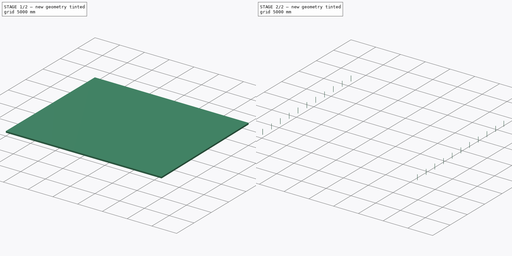
[diagram: build sequence overview — one tinted view per stage of 2, left to right]
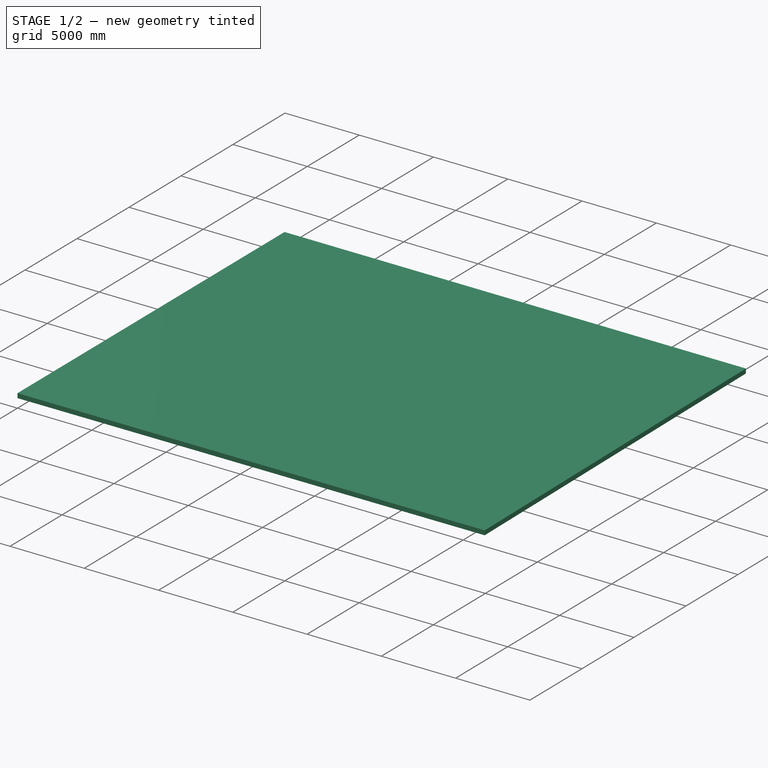
[diagram: stage 1 of 2 — iso view after this stage's code; geometry added in this stage tinted green]
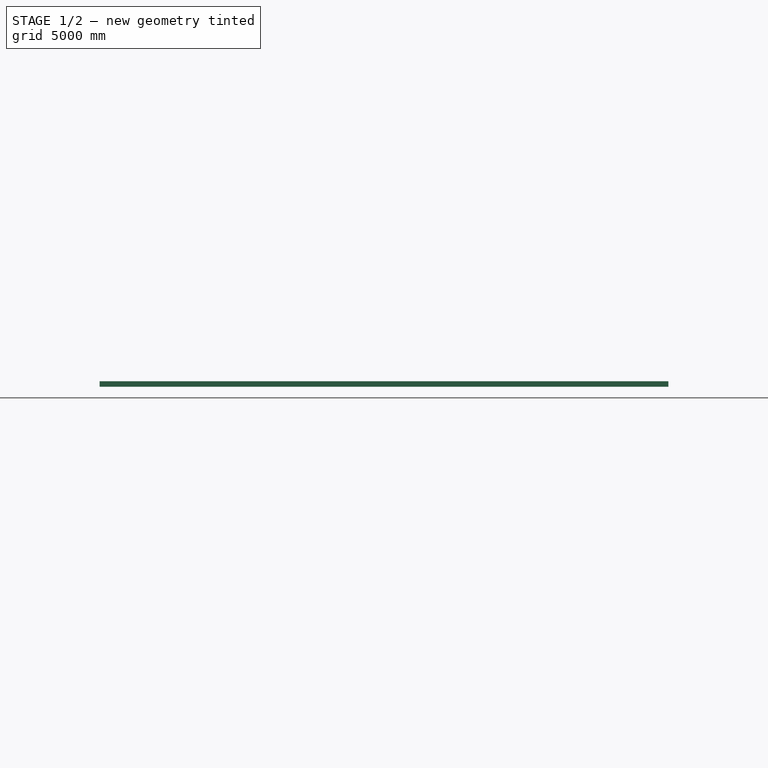
[diagram: stage 1 of 2 — front view after this stage's code; geometry added in this stage tinted green]
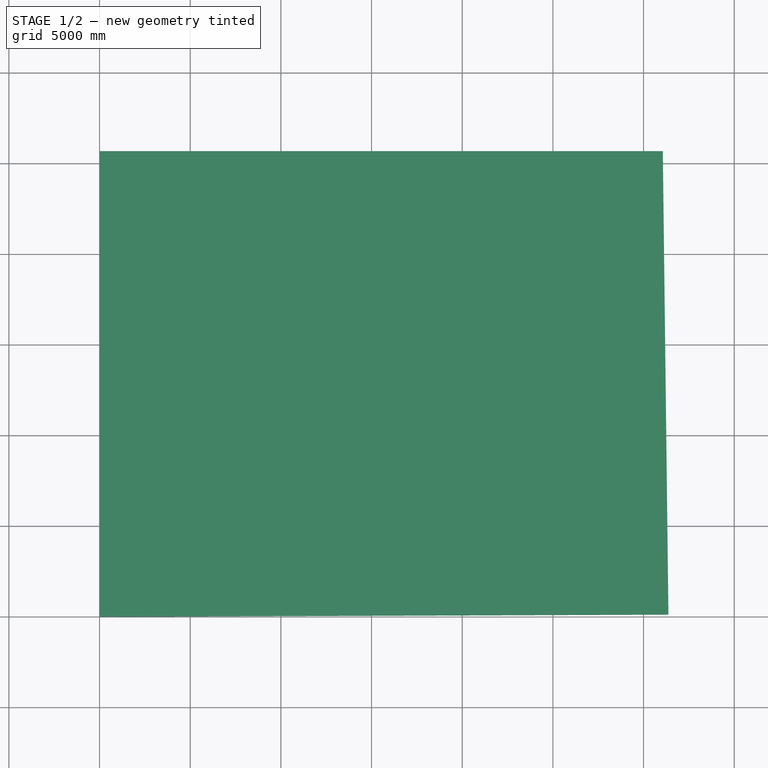
[diagram: stage 1 of 2 — top view after this stage's code; geometry added in this stage tinted green]
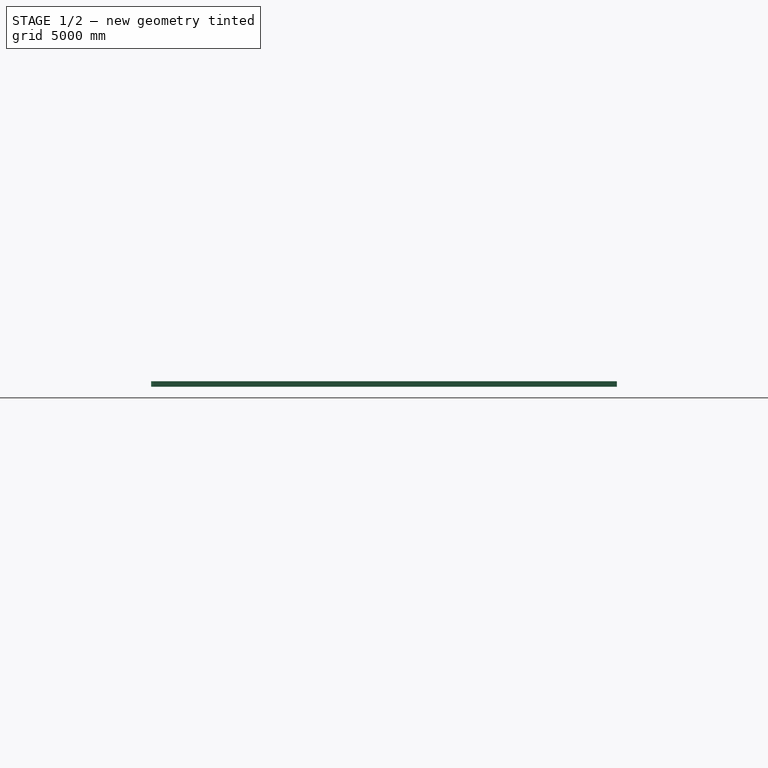
[diagram: stage 1 of 2 — right view after this stage's code; geometry added in this stage tinted green]
FCSTD DOCUMENT  (FreeCAD 1.0R39109 (Git))
Label: участок - забор
License: All rights reserved
LicenseURL: https://en.wikipedia.org/wiki/All_rights_reserved
objects: Sketcher::SketchObject×2, Part::Extrusion×2
note: 6 computed .brp shape members not serialized (recipe doc carries the construction recipe); baked Part::Feature solids carry a one-line shape summary decoded from their .brp

FEATURE [Sketcher::SketchObject] Sketch
  ArcFitTolerance = 1e-06
  FullyConstrained = true
  MakeInternals = false
  sketch-geometry (4):
    g0: LineSegment StartX=0 StartY=0 StartZ=0 EndX=0 EndY=25680 EndZ=0
    g1: LineSegment StartX=0 StartY=25680 StartZ=0 EndX=31060 EndY=25680 EndZ=0
    g2: LineSegment StartX=31060 StartY=25680 StartZ=0 EndX=31370 EndY=120 EndZ=0
    g3: LineSegment StartX=31370 StartY=120 StartZ=0 EndX=0 EndY=0 EndZ=0
  constraints (11):
    c: Coincident(g-1,g0)
    c: Vertical(g0)
    c: Coincident(g0,g1)
    c: Horizontal(g1)
    c: Coincident(g1,g2)
    c: Coincident(g2,g3)
    c: Coincident(g3,g0)
    c: DistanceY(g0,g0) = 25680  'west'
    c: DistanceX(g1,g1) = 31060
    c: DistanceY(g2,g2) = 25560
    c: DistanceX(g3,g3) = 31370
FEATURE [Part::Extrusion] Extrude  label="участок"
  Base = -> Sketch
  Dir = (0,0,1)
  DirMode = 2
  FaceMakerClass = Part::FaceMakerBullseye
  FaceMakerMode = 3
  LengthFwd = 300
  LengthRev = 0
  Solid = true
  Symmetric = false
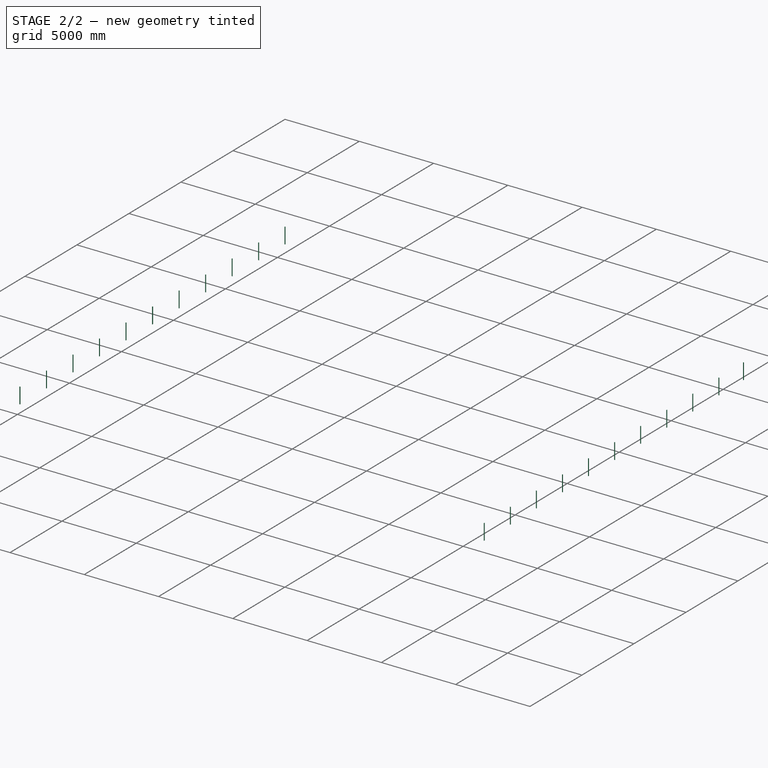
[diagram: stage 2 of 2 — iso view after this stage's code; geometry added in this stage tinted green]
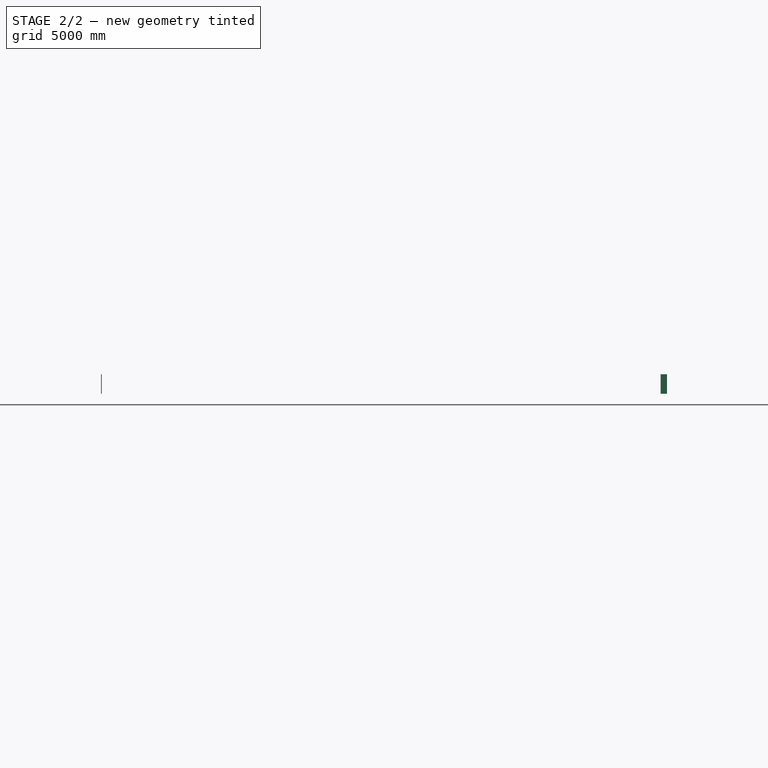
[diagram: stage 2 of 2 — front view after this stage's code; geometry added in this stage tinted green]
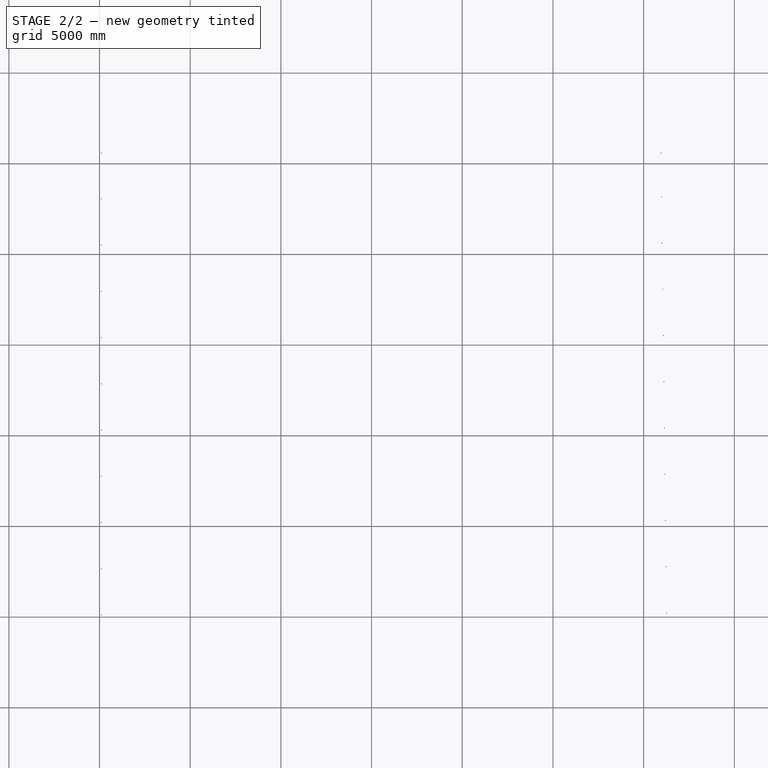
[diagram: stage 2 of 2 — top view after this stage's code; geometry added in this stage tinted green]
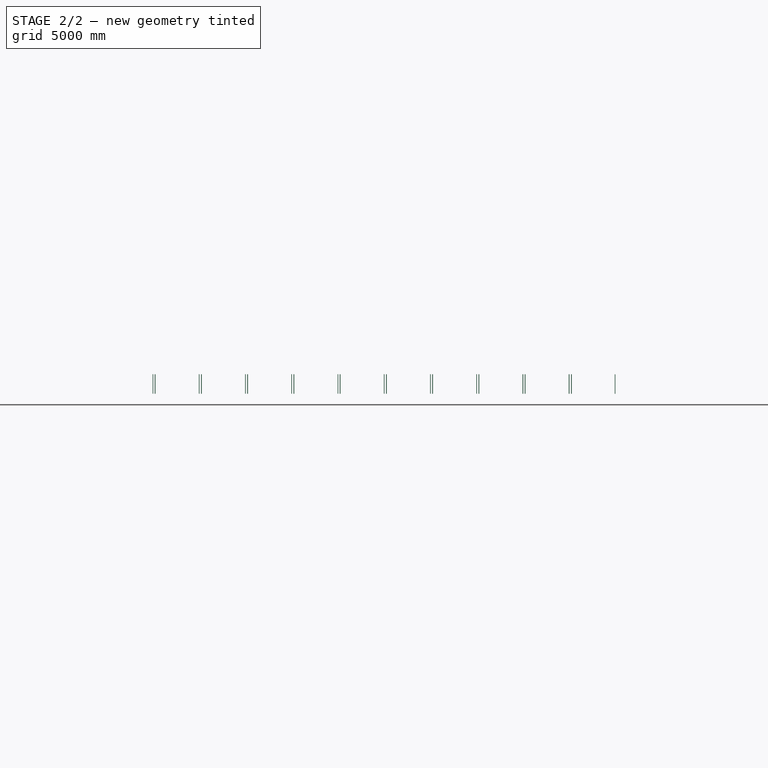
[diagram: stage 2 of 2 — right view after this stage's code; geometry added in this stage tinted green]
FEATURE [Sketcher::SketchObject] Sketch001
  ArcFitTolerance = 1e-06
  ExternalGeometry = -> [Extrude]
  FullyConstrained = true
  MakeInternals = false
  Placement = pos=(15595.5,12848.7,300) rot=(0,0,1;0rad)
  sketch-geometry (114):
    g0: LineSegment [constr] StartX=-15495.5 StartY=12731.3 StartZ=0 EndX=-15495.5 EndY=-12748.7 EndZ=0
    g1: LineSegment [constr] StartX=-15495.5 StartY=-12748.7 StartZ=0 EndX=15674.5 EndY=-12628.7 EndZ=0
    g2: LineSegment [constr] StartX=15674.5 StartY=-12628.7 StartZ=0 EndX=15364.5 EndY=12731.3 EndZ=0
    g3: LineSegment [constr] StartX=15364.5 StartY=12731.3 StartZ=0 EndX=-15495.5 EndY=12731.3 EndZ=0
    g4: LineSegment StartX=-15515.5 StartY=-12728.7 StartZ=0 EndX=-15475.5 EndY=-12728.7 EndZ=0
    g5: LineSegment StartX=-15475.5 StartY=-12728.7 StartZ=0 EndX=-15475.5 EndY=-12768.7 EndZ=0
    g6: LineSegment StartX=-15475.5 StartY=-12768.7 StartZ=0 EndX=-15515.5 EndY=-12768.7 EndZ=0
    g7: LineSegment StartX=-15515.5 StartY=-12768.7 StartZ=0 EndX=-15515.5 EndY=-12728.7 EndZ=0
    g8: GeomPoint [constr] X=-15495.5 Y=-12748.7 Z=0
    g9: LineSegment StartX=15654.5 StartY=-12648.7 StartZ=0 EndX=15694.5 EndY=-12648.7 EndZ=0
    g10: LineSegment StartX=15694.5 StartY=-12648.7 StartZ=0 EndX=15694.5 EndY=-12608.7 EndZ=0
    g11: LineSegment StartX=15694.5 StartY=-12608.7 StartZ=0 EndX=15654.5 EndY=-12608.7 EndZ=0
    g12: LineSegment StartX=15654.5 StartY=-12608.7 StartZ=0 EndX=15654.5 EndY=-12648.7 EndZ=0
    g13: GeomPoint [constr] X=15674.5 Y=-12628.7 Z=0
    g14: LineSegment StartX=15344.5 StartY=12711.3 StartZ=0 EndX=15384.5 EndY=12711.3 EndZ=0
    g15: LineSegment StartX=15384.5 StartY=12711.3 StartZ=0 EndX=15384.5 EndY=12751.3 EndZ=0
    g16: LineSegment StartX=15384.5 StartY=12751.3 StartZ=0 EndX=15344.5 EndY=12751.3 EndZ=0
    g17: LineSegment StartX=15344.5 StartY=12751.3 StartZ=0 EndX=15344.5 EndY=12711.3 EndZ=0
    g18: GeomPoint [constr] X=15364.5 Y=12731.3 Z=0
    g19: LineSegment StartX=-15515.5 StartY=12711.3 StartZ=0 EndX=-15475.5 EndY=12711.3 EndZ=0
    g20: LineSegment StartX=-15475.5 StartY=12711.3 StartZ=0 EndX=-15475.5 EndY=12751.3 EndZ=0
    g21: LineSegment StartX=-15475.5 StartY=12751.3 StartZ=0 EndX=-15515.5 EndY=12751.3 EndZ=0
    g22: LineSegment StartX=-15515.5 StartY=12751.3 StartZ=0 EndX=-15515.5 EndY=12711.3 EndZ=0
    g23: GeomPoint [constr] X=-15495.5 Y=12731.3 Z=0
    g24: LineSegment StartX=-15515.5 StartY=-10178.7 StartZ=0 EndX=-15475.5 EndY=-10178.7 EndZ=0
    g25: LineSegment StartX=-15475.5 StartY=-10178.7 StartZ=0 EndX=-15475.5 EndY=-10218.7 EndZ=0
    g26: LineSegment StartX=-15475.5 StartY=-10218.7 StartZ=0 EndX=-15515.5 EndY=-10218.7 EndZ=0
    g27: LineSegment StartX=-15515.5 StartY=-10218.7 StartZ=0 EndX=-15515.5 EndY=-10178.7 EndZ=0
    g28: GeomPoint [constr] X=-15495.5 Y=-10198.7 Z=0
    g29: LineSegment StartX=-15515.5 StartY=-7668.72 StartZ=0 EndX=-15475.5 EndY=-7668.72 EndZ=0
    g30: LineSegment StartX=-15475.5 StartY=-7668.72 StartZ=0 EndX=-15475.5 EndY=-7628.72 EndZ=0
    g31: LineSegment StartX=-15475.5 StartY=-7628.72 StartZ=0 EndX=-15515.5 EndY=-7628.72 EndZ=0
    g32: LineSegment StartX=-15515.5 StartY=-7628.72 StartZ=0 EndX=-15515.5 EndY=-7668.72 EndZ=0
    g33: GeomPoint [constr] X=-15495.5 Y=-7648.72 Z=0
    g34: LineSegment StartX=-15515.5 StartY=-5118.72 StartZ=0 EndX=-15475.5 EndY=-5118.72 EndZ=0
    g35: LineSegment StartX=-15475.5 StartY=-5118.72 StartZ=0 EndX=-15475.5 EndY=-5078.72 EndZ=0
    g36: LineSegment StartX=-15475.5 StartY=-5078.72 StartZ=0 EndX=-15515.5 EndY=-5078.72 EndZ=0
    g37: LineSegment StartX=-15515.5 StartY=-5078.72 StartZ=0 EndX=-15515.5 EndY=-5118.72 EndZ=0
    g38: GeomPoint [constr] X=-15495.5 Y=-5098.72 Z=0
    g39: LineSegment StartX=-15515.5 StartY=-2568.72 StartZ=0 EndX=-15475.5 EndY=-2568.72 EndZ=0
    g40: LineSegment StartX=-15475.5 StartY=-2568.72 StartZ=0 EndX=-15475.5 EndY=-2528.72 EndZ=0
    g41: LineSegment StartX=-15475.5 StartY=-2528.72 StartZ=0 EndX=-15515.5 EndY=-2528.72 EndZ=0
    g42: LineSegment StartX=-15515.5 StartY=-2528.72 StartZ=0 EndX=-15515.5 EndY=-2568.72 EndZ=0
    g43: GeomPoint [constr] X=-15495.5 Y=-2548.72 Z=0
    g44: LineSegment StartX=-15515.5 StartY=-18.7243 StartZ=0 EndX=-15475.5 EndY=-18.7243 EndZ=0
    g45: LineSegment StartX=-15475.5 StartY=-18.7243 StartZ=0 EndX=-15475.5 EndY=21.2757 EndZ=0
    g46: LineSegment StartX=-15475.5 StartY=21.2757 StartZ=0 EndX=-15515.5 EndY=21.2757 EndZ=0
    g47: LineSegment StartX=-15515.5 StartY=21.2757 StartZ=0 EndX=-15515.5 EndY=-18.7243 EndZ=0
    g48: GeomPoint [constr] X=-15495.5 Y=1.27566 Z=0
    g49: LineSegment StartX=-15515.5 StartY=2531.28 StartZ=0 EndX=-15475.5 EndY=2531.28 EndZ=0
    g50: LineSegment StartX=-15475.5 StartY=2531.28 StartZ=0 EndX=-15475.5 EndY=2571.28 EndZ=0
    g51: LineSegment StartX=-15475.5 StartY=2571.28 StartZ=0 EndX=-15515.5 EndY=2571.28 EndZ=0
    g52: LineSegment StartX=-15515.5 StartY=2571.28 StartZ=0 EndX=-15515.5 EndY=2531.28 EndZ=0
    g53: GeomPoint [constr] X=-15495.5 Y=2551.28 Z=0
    g54: LineSegment StartX=-15515.5 StartY=5081.28 StartZ=0 EndX=-15475.5 EndY=5081.28 EndZ=0
    g55: LineSegment StartX=-15475.5 StartY=5081.28 StartZ=0 EndX=-15475.5 EndY=5121.28 EndZ=0
    g56: LineSegment StartX=-15475.5 StartY=5121.28 StartZ=0 EndX=-15515.5 EndY=5121.28 EndZ=0
    g57: LineSegment StartX=-15515.5 StartY=5121.28 StartZ=0 EndX=-15515.5 EndY=5081.28 EndZ=0
    g58: GeomPoint [constr] X=-15495.5 Y=5101.28 Z=0
    g59: LineSegment StartX=-15515.5 StartY=7631.28 StartZ=0 EndX=-15475.5 EndY=7631.28 EndZ=0
    g60: LineSegment StartX=-15475.5 StartY=7631.28 StartZ=0 EndX=-15475.5 EndY=7671.28 EndZ=0
    g61: LineSegment StartX=-15475.5 StartY=7671.28 StartZ=0 EndX=-15515.5 EndY=7671.28 EndZ=0
    g62: LineSegment StartX=-15515.5 StartY=7671.28 StartZ=0 EndX=-15515.5 EndY=7631.28 EndZ=0
    g63: GeomPoint [constr] X=-15495.5 Y=7651.28 Z=0
    g64: LineSegment StartX=-15515.5 StartY=10181.3 StartZ=0 EndX=-15475.5 EndY=10181.3 EndZ=0
    g65: LineSegment StartX=-15475.5 StartY=10181.3 StartZ=0 EndX=-15475.5 EndY=10221.3 EndZ=0
    g66: LineSegment StartX=-15475.5 StartY=10221.3 StartZ=0 EndX=-15515.5 EndY=10221.3 EndZ=0
    g67: LineSegment StartX=-15515.5 StartY=10221.3 StartZ=0 EndX=-15515.5 EndY=10181.3 EndZ=0
    g68: GeomPoint [constr] X=-15495.5 Y=10201.3 Z=0
    g69: LineSegment StartX=15623.3 StartY=-10098.7 StartZ=0 EndX=15663.3 EndY=-10098.7 EndZ=0
    g70: LineSegment StartX=15663.3 StartY=-10098.7 StartZ=0 EndX=15663.3 EndY=-10058.7 EndZ=0
    g71: LineSegment StartX=15663.3 StartY=-10058.7 StartZ=0 EndX=15623.3 EndY=-10058.7 EndZ=0
    g72: LineSegment StartX=15623.3 StartY=-10058.7 StartZ=0 EndX=15623.3 EndY=-10098.7 EndZ=0
    g73: GeomPoint [constr] X=15643.3 Y=-10078.7 Z=0
    g74: LineSegment StartX=15592.2 StartY=-7548.72 StartZ=0 EndX=15632.2 EndY=-7548.72 EndZ=0
    g75: LineSegment StartX=15632.2 StartY=-7548.72 StartZ=0 EndX=15632.2 EndY=-7508.72 EndZ=0
    g76: LineSegment StartX=15632.2 StartY=-7508.72 StartZ=0 EndX=15592.2 EndY=-7508.72 EndZ=0
    g77: LineSegment StartX=15592.2 StartY=-7508.72 StartZ=0 EndX=15592.2 EndY=-7548.72 EndZ=0
    g78: GeomPoint [constr] X=15612.2 Y=-7528.72 Z=0
    g79: LineSegment StartX=15561 StartY=-4998.72 StartZ=0 EndX=15601 EndY=-4998.72 EndZ=0
    g80: LineSegment StartX=15601 StartY=-4998.72 StartZ=0 EndX=15601 EndY=-4958.72 EndZ=0
    g81: LineSegment StartX=15601 StartY=-4958.72 StartZ=0 EndX=15561 EndY=-4958.72 EndZ=0
    g82: LineSegment StartX=15561 StartY=-4958.72 StartZ=0 EndX=15561 EndY=-4998.72 EndZ=0
    g83: GeomPoint [constr] X=15581 Y=-4978.72 Z=0
    g84: LineSegment StartX=15529.8 StartY=-2448.72 StartZ=0 EndX=15569.8 EndY=-2448.72 EndZ=0
    g85: LineSegment StartX=15569.8 StartY=-2448.72 StartZ=0 EndX=15569.8 EndY=-2408.72 EndZ=0
    g86: LineSegment StartX=15569.8 StartY=-2408.72 StartZ=0 EndX=15529.8 EndY=-2408.72 EndZ=0
    g87: LineSegment StartX=15529.8 StartY=-2408.72 StartZ=0 EndX=15529.8 EndY=-2448.72 EndZ=0
    g88: GeomPoint [constr] X=15549.8 Y=-2428.72 Z=0
    g89: LineSegment StartX=15498.6 StartY=101.082 StartZ=0 EndX=15538.6 EndY=101.082 EndZ=0
    g90: LineSegment StartX=15538.6 StartY=101.082 StartZ=0 EndX=15538.6 EndY=141.082 EndZ=0
    g91: LineSegment StartX=15538.6 StartY=141.082 StartZ=0 EndX=15498.6 EndY=141.082 EndZ=0
    g92: LineSegment StartX=15498.6 StartY=141.082 StartZ=0 EndX=15498.6 EndY=101.082 EndZ=0
    g93: GeomPoint [constr] X=15518.6 Y=121.082 Z=0
    g94: LineSegment StartX=15467.5 StartY=2651.08 StartZ=0 EndX=15507.5 EndY=2651.08 EndZ=0
    g95: LineSegment StartX=15507.5 StartY=2651.08 StartZ=0 EndX=15507.5 EndY=2691.08 EndZ=0
    g96: LineSegment StartX=15507.5 StartY=2691.08 StartZ=0 EndX=15467.5 EndY=2691.08 EndZ=0
    g97: LineSegment StartX=15467.5 StartY=2691.08 StartZ=0 EndX=15467.5 EndY=2651.08 EndZ=0
    g98: GeomPoint [constr] X=15487.5 Y=2671.08 Z=0
    g99: LineSegment StartX=15436.3 StartY=5201.08 StartZ=0 EndX=15476.3 EndY=5201.08 EndZ=0
    g100: LineSegment StartX=15476.3 StartY=5201.08 StartZ=0 EndX=15476.3 EndY=5241.08 EndZ=0
    g101: LineSegment StartX=15476.3 StartY=5241.08 StartZ=0 EndX=15436.3 EndY=5241.08 EndZ=0
    g102: LineSegment StartX=15436.3 StartY=5241.08 StartZ=0 EndX=15436.3 EndY=5201.08 EndZ=0
    g103: GeomPoint [constr] X=15456.3 Y=5221.08 Z=0
    g104: LineSegment StartX=15405.1 StartY=7751.08 StartZ=0 EndX=15445.1 EndY=7751.08 EndZ=0
    g105: LineSegment StartX=15445.1 StartY=7751.08 StartZ=0 EndX=15445.1 EndY=7791.08 EndZ=0
    g106: LineSegment StartX=15445.1 StartY=7791.08 StartZ=0 EndX=15405.1 EndY=7791.08 EndZ=0
    g107: LineSegment StartX=15405.1 StartY=7791.08 StartZ=0 EndX=15405.1 EndY=7751.08 EndZ=0
    g108: GeomPoint [constr] X=15425.1 Y=7771.08 Z=0
    g109: LineSegment StartX=15374 StartY=10301.1 StartZ=0 EndX=15414 EndY=10301.1 EndZ=0
    g110: LineSegment StartX=15414 StartY=10301.1 StartZ=0 EndX=15414 EndY=10341.1 EndZ=0
    g111: LineSegment StartX=15414 StartY=10341.1 StartZ=0 EndX=15374 EndY=10341.1 EndZ=0
    g112: LineSegment StartX=15374 StartY=10341.1 StartZ=0 EndX=15374 EndY=10301.1 EndZ=0
    g113: GeomPoint [constr] X=15394 Y=10321.1 Z=0
  constraints (294):
    c: Vertical(g0)
    c: Coincident(g0,g1)
    c: Coincident(g1,g2)
    c: Coincident(g2,g3)
    c: Coincident(g3,g0)
    c: Horizontal(g3)
    c: DistanceY(g0,g0) = 25480
    c: DistanceX(g3,g3) = 30860
    c: DistanceY(g2,g2) = 25360
    c: DistanceX(g1,g1) = 31170
    c: Distance(g-4,g0) = 100
    c: Distance(g-3,g3) = 100
    c: Coincident(g4,g5)
    c: Coincident(g5,g6)
    c: Coincident(g6,g7)
    c: Coincident(g7,g4)
    c: Horizontal(g4)
    c: Horizontal(g6)
    c: Vertical(g5)
    c: Vertical(g7)
    c: Symmetric(g6,g4,g8)
    c: Distance(g5,g7) = 40
    c: Distance(g4,g6) = 40
    c: Coincident(g8,g0)
    c: Coincident(g9,g10)
    c: Coincident(g10,g11)
    c: Coincident(g11,g12)
    c: Coincident(g12,g9)
    c: Horizontal(g9)
    c: Horizontal(g11)
    c: Vertical(g10)
    c: Vertical(g12)
    c: Symmetric(g11,g9,g13)
    c: Distance(g10,g12) = 40
    c: Distance(g9,g11) = 40
    c: Coincident(g13,g1)
    c: Coincident(g14,g15)
    c: Coincident(g15,g16)
    c: Coincident(g16,g17)
    c: Coincident(g17,g14)
    c: Horizontal(g14)
    c: Horizontal(g16)
    c: Vertical(g15)
    c: Vertical(g17)
    c: Symmetric(g16,g14,g18)
    c: Distance(g15,g17) = 40
    c: Distance(g14,g16) = 40
    c: Coincident(g18,g2)
    c: Coincident(g19,g20)
    c: Coincident(g20,g21)
    c: Coincident(g21,g22)
    c: Coincident(g22,g19)
    c: Horizontal(g19)
    c: Horizontal(g21)
    c: Vertical(g20)
    c: Vertical(g22)
    c: Symmetric(g21,g19,g23)
    c: Distance(g20,g22) = 40
    c: Distance(g19,g21) = 40
    c: Coincident(g23,g0)
    c: Coincident(g24,g25)
    c: Coincident(g25,g26)
    c: Coincident(g26,g27)
    c: Coincident(g27,g24)
    c: Horizontal(g24)
    c: Horizontal(g26)
    c: Vertical(g25)
    c: Vertical(g27)
    c: Symmetric(g26,g24,g28)
    c: Distance(g25,g27) = 40
    c: Distance(g24,g26) = 40
    c: PointOnObject(g28,g0)
    c: Distance(g4,g26) = 2510
    c: Coincident(g29,g30)
    c: Coincident(g30,g31)
    c: Coincident(g31,g32)
    c: Coincident(g32,g29)
    c: Horizontal(g29)
    c: Horizontal(g31)
    c: Vertical(g30)
    c: Vertical(g32)
    c: Symmetric(g31,g29,g33)
    c: Distance(g30,g32) = 40
    c: Distance(g29,g31) = 40
    c: PointOnObject(g33,g0)
    c: Distance(g29,g24) = 2510
    c: Coincident(g34,g35)
    c: Coincident(g35,g36)
    c: Coincident(g36,g37)
    c: Coincident(g37,g34)
    c: Horizontal(g34)
    c: Horizontal(g36)
    c: Vertical(g35)
    c: Vertical(g37)
    c: Symmetric(g36,g34,g38)
    c: Distance(g35,g37) = 40
    c: Distance(g34,g36) = 40
    c: PointOnObject(g38,g0)
    c: Distance(g34,g31) = 2510
    c: Coincident(g39,g40)
    c: Coincident(g40,g41)
    c: Coincident(g41,g42)
    c: Coincident(g42,g39)
    c: Horizontal(g39)
    c: Horizontal(g41)
    c: Vertical(g40)
    c: Vertical(g42)
    c: Symmetric(g41,g39,g43)
    c: Distance(g40,g42) = 40
    c: Distance(g39,g41) = 40
    c: PointOnObject(g43,g0)
    c: Distance(g36,g39) = 2510
    c: Coincident(g44,g45)
    c: Coincident(g45,g46)
    c: Coincident(g46,g47)
    c: Coincident(g47,g44)
    c: Horizontal(g44)
    c: Horizontal(g46)
    c: Vertical(g45)
    c: Vertical(g47)
    c: Symmetric(g46,g44,g48)
    c: Distance(g45,g47) = 40
    c: Distance(g44,g46) = 40
    c: PointOnObject(g48,g0)
    c: Distance(g41,g44) = 2510
    c: Coincident(g49,g50)
    c: Coincident(g50,g51)
    c: Coincident(g51,g52)
    c: Coincident(g52,g49)
    c: Horizontal(g49)
    c: Horizontal(g51)
    c: Vertical(g50)
    c: Vertical(g52)
    c: Symmetric(g51,g49,g53)
    c: Distance(g50,g52) = 40
    c: Distance(g49,g51) = 40
    c: PointOnObject(g53,g0)
    c: Distance(g46,g49) = 2510
    c: Coincident(g54,g55)
    c: Coincident(g55,g56)
    c: Coincident(g56,g57)
    c: Coincident(g57,g54)
    c: Horizontal(g54)
    c: Horizontal(g56)
    c: Vertical(g55)
    c: Vertical(g57)
    c: Symmetric(g56,g54,g58)
    c: Distance(g55,g57) = 40
    c: Distance(g54,g56) = 40
    c: PointOnObject(g58,g0)
    c: Distance(g51,g54) = 2510
    c: Coincident(g59,g60)
    c: Coincident(g60,g61)
    c: Coincident(g61,g62)
    c: Coincident(g62,g59)
    c: Horizontal(g59)
    c: Horizontal(g61)
    c: Vertical(g60)
    c: Vertical(g62)
    c: Symmetric(g61,g59,g63)
    c: Distance(g60,g62) = 40
    c: Distance(g56,g59) = 2510
    c: DistanceY(g62,g62) = 40
    c: PointOnObject(g63,g0)
    c: Coincident(g64,g65)
    c: Coincident(g65,g66)
    c: Coincident(g66,g67)
    c: Coincident(g67,g64)
    c: Horizontal(g64)
    c: Horizontal(g66)
    c: Vertical(g65)
    c: Vertical(g67)
    c: Symmetric(g66,g64,g68)
    c: Distance(g65,g67) = 40
    c: Distance(g64,g66) = 40
    c: PointOnObject(g68,g0)
    c: Distance(g61,g64) = 2510
    c: Coincident(g69,g70)
    c: Coincident(g70,g71)
    c: Coincident(g71,g72)
    c: Coincident(g72,g69)
    c: Horizontal(g69)
    c: Horizontal(g71)
    c: Vertical(g70)
    c: Vertical(g72)
    c: Symmetric(g71,g69,g73)
    c: Distance(g70,g72) = 40
    c: Distance(g69,g71) = 40
    c: PointOnObject(g73,g2)
    c: DistanceY(g10,g69) = 2510
    c: Coincident(g74,g75)
    c: Coincident(g75,g76)
    c: Coincident(g76,g77)
    c: Coincident(g77,g74)
    c: Horizontal(g74)
    c: Horizontal(g76)
    c: Vertical(g75)
    c: Vertical(g77)
    c: Symmetric(g76,g74,g78)
    c: Distance(g75,g77) = 40
    c: Distance(g74,g76) = 40
    c: PointOnObject(g78,g2)
    c: DistanceY(g70,g74) = 2510
    c: Coincident(g79,g80)
    c: Coincident(g80,g81)
    c: Coincident(g81,g82)
    c: Coincident(g82,g79)
    c: Horizontal(g79)
    c: Horizontal(g81)
    c: Vertical(g80)
    c: Vertical(g82)
    c: Symmetric(g81,g79,g83)
    c: Distance(g80,g82) = 40
    c: Distance(g79,g81) = 40
    c: PointOnObject(g83,g2)
    c: DistanceY(g75,g79) = 2510
    c: Coincident(g84,g85)
    c: Coincident(g85,g86)
    c: Coincident(g86,g87)
    c: Coincident(g87,g84)
    c: Horizontal(g84)
    c: Horizontal(g86)
    c: Vertical(g85)
    c: Vertical(g87)
    c: Symmetric(g86,g84,g88)
    c: Distance(g85,g87) = 40
    c: Distance(g84,g86) = 40
    c: PointOnObject(g88,g2)
    c: DistanceY(g80,g84) = 2510
    c: Coincident(g89,g90)
    c: Coincident(g90,g91)
    c: Coincident(g91,g92)
    c: Coincident(g92,g89)
    c: Horizontal(g89)
    c: Horizontal(g91)
    c: Vertical(g90)
    c: Vertical(g92)
    c: Symmetric(g91,g89,g93)
    c: Distance(g90,g92) = 40
    c: Distance(g89,g91) = 40
    c: PointOnObject(g93,g2)
    c: Distance(g85,g89) = 2510
    c: Coincident(g94,g95)
    c: Coincident(g95,g96)
    c: Coincident(g96,g97)
    c: Coincident(g97,g94)
    c: Horizontal(g94)
    c: Horizontal(g96)
    c: Vertical(g95)
    c: Vertical(g97)
    c: Symmetric(g96,g94,g98)
    c: Distance(g95,g97) = 40
    c: Distance(g94,g96) = 40
    c: PointOnObject(g98,g2)
    c: DistanceY(g90,g94) = 2510
    c: Coincident(g99,g100)
    c: Coincident(g100,g101)
    c: Coincident(g101,g102)
    c: Coincident(g102,g99)
    c: Horizontal(g99)
    c: Horizontal(g101)
    c: Vertical(g100)
    c: Vertical(g102)
    c: Symmetric(g101,g99,g103)
    c: Distance(g100,g102) = 40
    c: Distance(g99,g101) = 40
    c: PointOnObject(g103,g2)
    c: DistanceY(g95,g99) = 2510
    c: Coincident(g104,g105)
    c: Coincident(g105,g106)
    c: Coincident(g106,g107)
    c: Coincident(g107,g104)
    c: Horizontal(g104)
    c: Horizontal(g106)
    c: Vertical(g105)
    c: Vertical(g107)
    c: Symmetric(g106,g104,g108)
    c: Distance(g105,g107) = 40
    c: Distance(g104,g106) = 40
    c: PointOnObject(g108,g2)
    c: DistanceY(g100,g104) = 2510
    c: Coincident(g109,g110)
    c: Coincident(g110,g111)
    c: Coincident(g111,g112)
    c: Coincident(g112,g109)
    c: Horizontal(g109)
    c: Horizontal(g111)
    c: Vertical(g110)
    c: Vertical(g112)
    c: Symmetric(g111,g109,g113)
    c: Distance(g110,g112) = 40
    c: Distance(g109,g111) = 40
    c: PointOnObject(g113,g2)
    c: DistanceY(g105,g109) = 2510
FEATURE [Part::Extrusion] Extrude001  label="угловые столбы"
  Base = -> Sketch001
  Dir = (0,0,1)
  DirMode = 2
  FaceMakerClass = Part::FaceMakerBullseye
  FaceMakerMode = 3
  LengthFwd = 1070
  LengthRev = 0
  Solid = true
  Symmetric = false
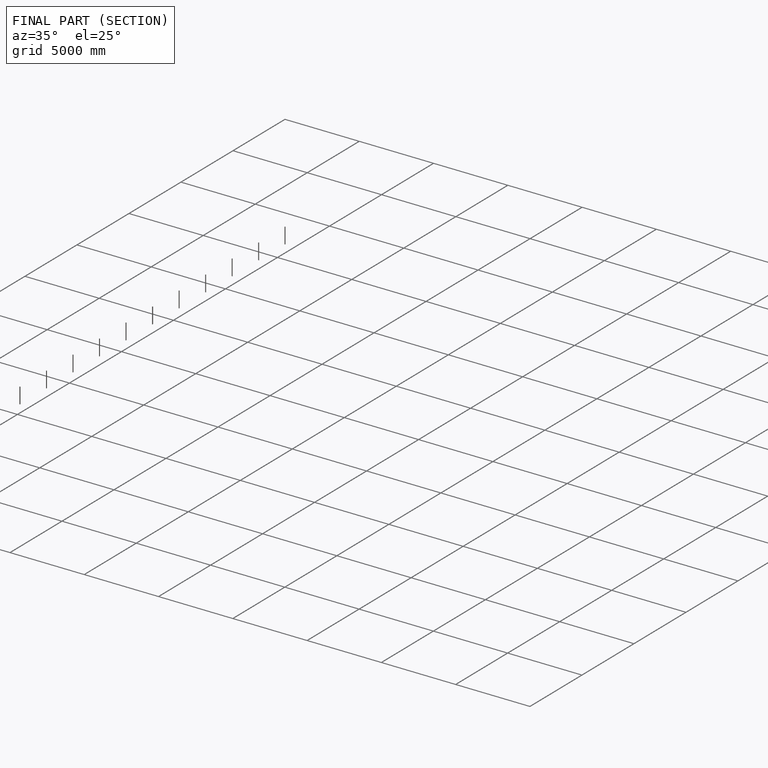
[diagram: finished part — half-section view (interior)]
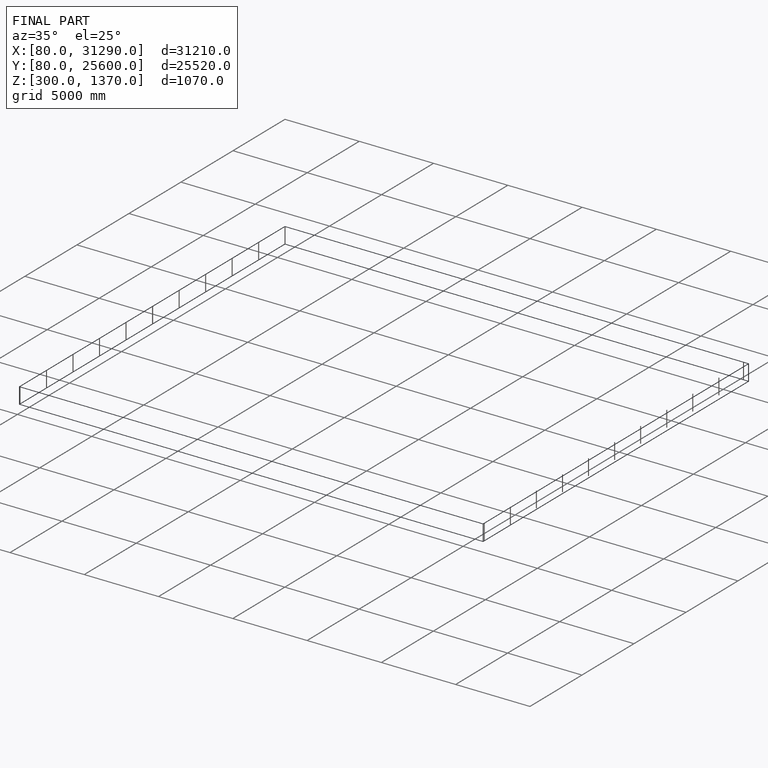
[diagram: finished part — iso view with bounding-box wireframe]
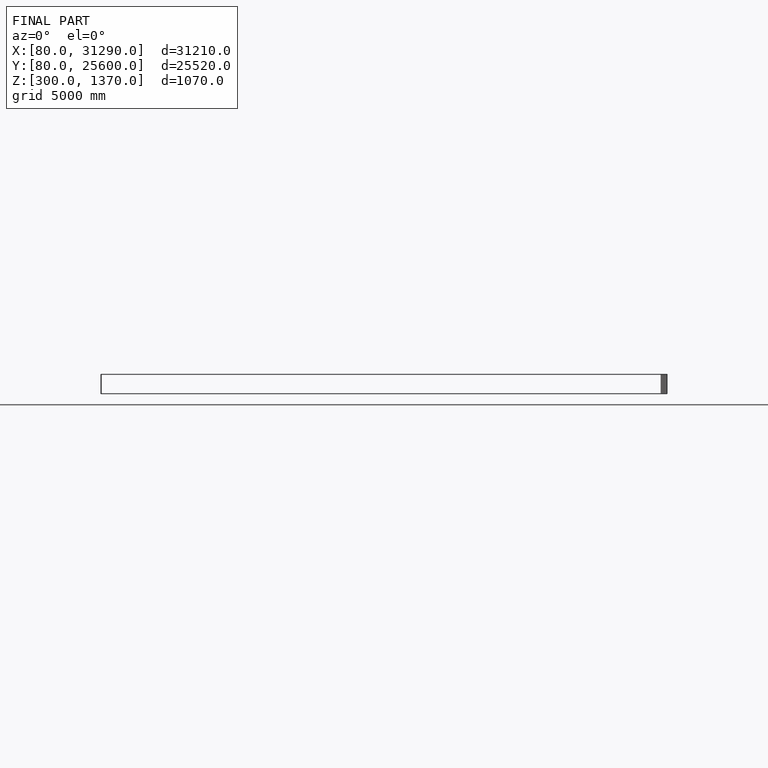
[diagram: finished part — front view with bounding-box wireframe]
